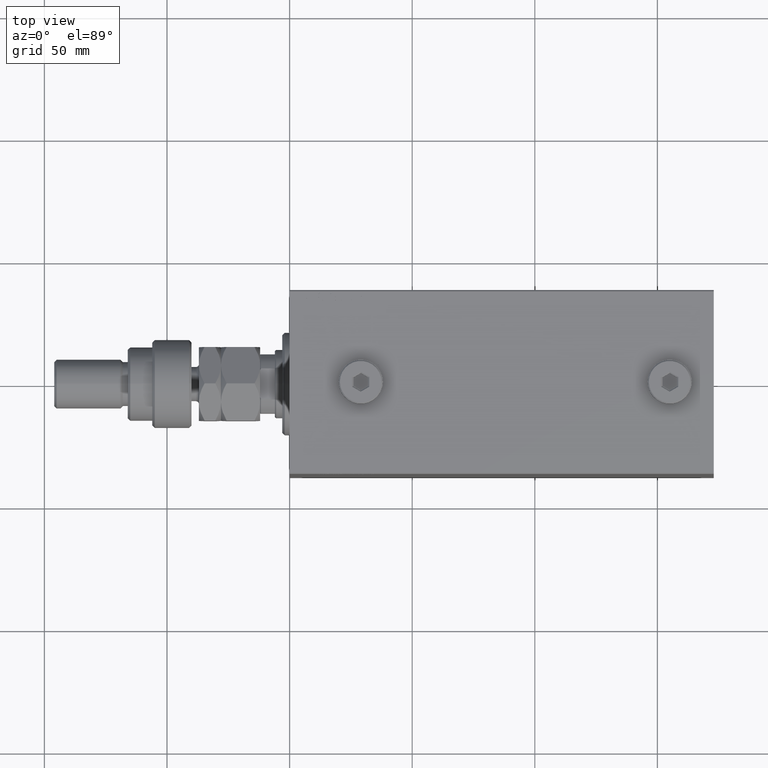
[diagram: clean part render]
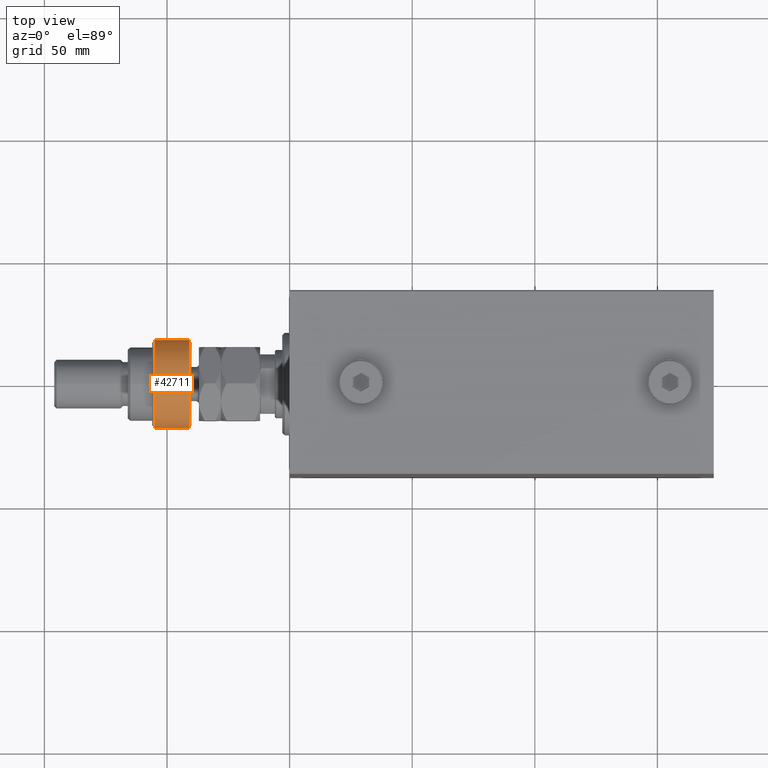
[diagram: same view with one face highlighted and labeled with its STEP entity id]
A machine part, top view. The second image highlights one B-rep face of the part: STEP entity #42711.
In plain terms, the highlighted cylindrical surface (partial cylindrical patch) has radius 18 mm, axis along (1, -0, -0).
Its self-contained STEP definition (entity closure, byte-faithful):
#52 = CARTESIAN_POINT ( 'NONE',  ( -16.36306817195357155, -7.500000000000000000, 14.99999999999999645 ) ) ;
#449 = CARTESIAN_POINT ( 'NONE',  ( 0.000000000000000000, 0.000000000000000000, 1.000000000000011324 ) ) ;
#2386 = DIRECTION ( 'NONE',  ( -0.000000000000000000, -0.000000000000000000, -1.000000000000000000 ) ) ;
#2685 = DIRECTION ( 'NONE',  ( -0.000000000000000000, -0.000000000000000000, 1.000000000000000000 ) ) ;
#3556 = VERTEX_POINT ( 'NONE', #18586 ) ;
#5539 = AXIS2_PLACEMENT_3D ( 'NONE', #449, #45118, #37743 ) ;
#6916 = CARTESIAN_POINT ( 'NONE',  ( -16.36306817195357155, 7.500000000000000000, 14.99999999999999645 ) ) ;
#7242 = EDGE_LOOP ( 'NONE', ( #36933, #10583, #13957, #27405, #28832 ) ) ;
#8312 = EDGE_CURVE ( 'NONE', #3556, #26430, #10147, .T. ) ;
#9327 = DIRECTION ( 'NONE',  ( 1.000000000000000000, 0.000000000000000000, 0.000000000000000000 ) ) ;
#10147 = CIRCLE ( 'NONE', #37608, 18.00000000000000000 ) ;
#10486 = DIRECTION ( 'NONE',  ( -0.000000000000000000, -0.000000000000000000, -1.000000000000000000 ) ) ;
#10583 = ORIENTED_EDGE ( 'NONE', *, *, #42869, .T. ) ;
#11136 = FACE_OUTER_BOUND ( 'NONE', #7242, .T. ) ;
#12701 = VECTOR ( 'NONE', #10486, 1000.000000000000000 ) ;
#13743 = CARTESIAN_POINT ( 'NONE',  ( 0.000000000000000000, 0.000000000000000000, 1.000000000000011324 ) ) ;
#13957 = ORIENTED_EDGE ( 'NONE', *, *, #16476, .T. ) ;
#14187 = LINE ( 'NONE', #29633, #12701 ) ;
#16250 = VERTEX_POINT ( 'NONE', #52 ) ;
#16476 = EDGE_CURVE ( 'NONE', #16250, #36559, #14187, .T. ) ;
#18586 = CARTESIAN_POINT ( 'NONE',  ( 18.00000000000000000, 0.000000000000000000, 1.000000000000011324 ) ) ;
#19796 = CARTESIAN_POINT ( 'NONE',  ( -16.36306817195357155, 7.500000000000000000, 1.000000000000011324 ) ) ;
#19857 = CIRCLE ( 'NONE', #20626, 18.00000000000000000 ) ;
#20107 = CARTESIAN_POINT ( 'NONE',  ( -16.36306817195357155, -7.500000000000000000, 1.000000000000011324 ) ) ;
#20626 = AXIS2_PLACEMENT_3D ( 'NONE', #20718, #21658, #35662 ) ;
#20718 = CARTESIAN_POINT ( 'NONE',  ( 0.000000000000000000, 0.000000000000000000, 14.99999999999999645 ) ) ;
#21658 = DIRECTION ( 'NONE',  ( 0.000000000000000000, 0.000000000000000000, -1.000000000000000000 ) ) ;
#22449 = CYLINDRICAL_SURFACE ( 'NONE', #35481, 18.00000000000000000 ) ;
#22576 = EDGE_CURVE ( 'NONE', #29159, #26430, #39465, .T. ) ;
#25133 = CIRCLE ( 'NONE', #5539, 18.00000000000000000 ) ;
#26430 = VERTEX_POINT ( 'NONE', #19796 ) ;
#27405 = ORIENTED_EDGE ( 'NONE', *, *, #33377, .T. ) ;
#28832 = ORIENTED_EDGE ( 'NONE', *, *, #8312, .T. ) ;
#29159 = VERTEX_POINT ( 'NONE', #6916 ) ;
#29633 = CARTESIAN_POINT ( 'NONE',  ( -16.36306817195357155, -7.500000000000000000, 17.50000000000000000 ) ) ;
#33377 = EDGE_CURVE ( 'NONE', #36559, #3556, #25133, .T. ) ;
#35481 = AXIS2_PLACEMENT_3D ( 'NONE', #41324, #45017, #37399 ) ;
#35662 = DIRECTION ( 'NONE',  ( 1.000000000000000000, 0.000000000000000000, 0.000000000000000000 ) ) ;
#36559 = VERTEX_POINT ( 'NONE', #20107 ) ;
#36933 = ORIENTED_EDGE ( 'NONE', *, *, #22576, .F. ) ;
#37399 = DIRECTION ( 'NONE',  ( -1.000000000000000000, 0.000000000000000000, 0.000000000000000000 ) ) ;
#37608 = AXIS2_PLACEMENT_3D ( 'NONE', #13743, #2685, #9327 ) ;
#37743 = DIRECTION ( 'NONE',  ( 1.000000000000000000, 0.000000000000000000, 0.000000000000000000 ) ) ;
#37960 = VECTOR ( 'NONE', #2386, 1000.000000000000000 ) ;
#39465 = LINE ( 'NONE', #47068, #37960 ) ;
#41324 = CARTESIAN_POINT ( 'NONE',  ( 0.000000000000000000, 0.000000000000000000, 16.00000000000000000 ) ) ;
#42711 = ADVANCED_FACE ( 'NONE', ( #11136 ), #22449, .T. ) ;
#42869 = EDGE_CURVE ( 'NONE', #29159, #16250, #19857, .T. ) ;
#45017 = DIRECTION ( 'NONE',  ( -0.000000000000000000, -0.000000000000000000, -1.000000000000000000 ) ) ;
#45118 = DIRECTION ( 'NONE',  ( -0.000000000000000000, -0.000000000000000000, 1.000000000000000000 ) ) ;
#47068 = CARTESIAN_POINT ( 'NONE',  ( -16.36306817195357155, 7.500000000000000000, 17.50000000000000000 ) ) ;